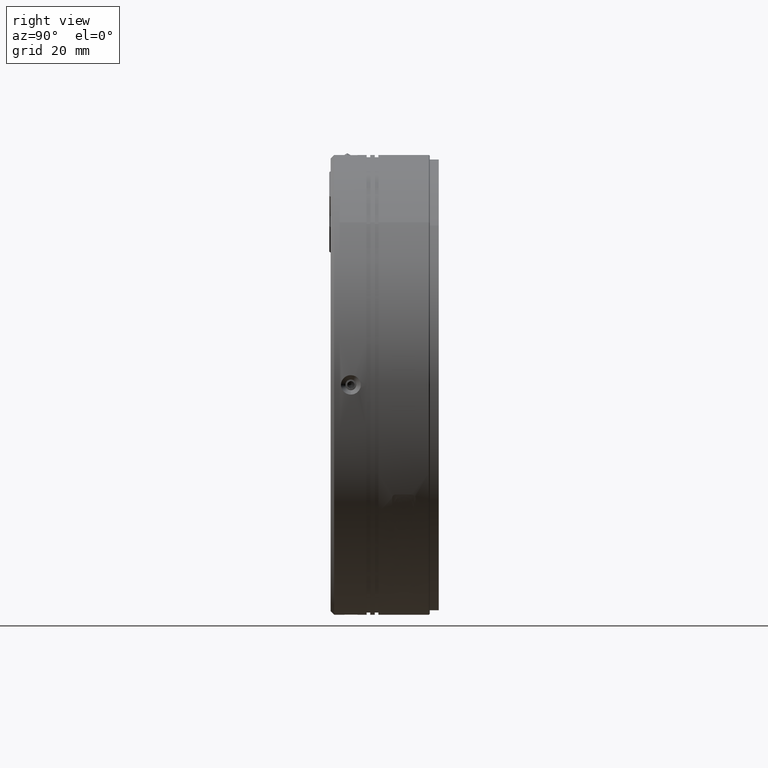
[diagram: clean part render]
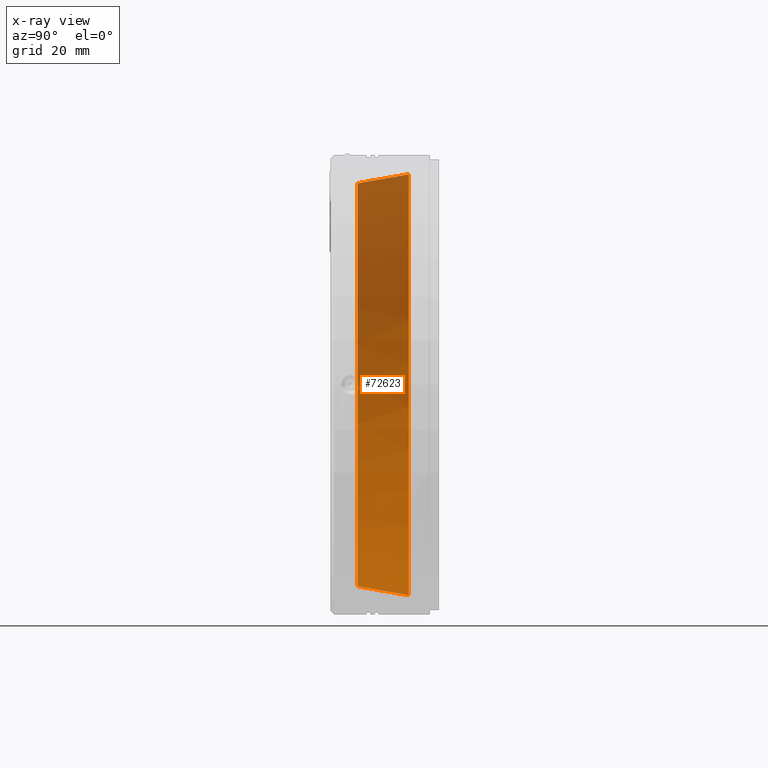
[diagram: x-ray — body ghosted, one internal face saturated and labeled with its STEP entity id]
A machine part, right view, then the same camera in x-ray: the body is ghosted and one INTERNAL B-rep face — a face not visible from any outside direction — is saturated and labeled: STEP entity #72623.
In plain terms, the highlighted conical surface has half-angle 10 deg.
Its self-contained STEP definition (entity closure, byte-faithful):
#1984 = EDGE_CURVE ( 'NONE', #14570, #21691, #44793, .T. ) ;
#2862 = ORIENTED_EDGE ( 'NONE', *, *, #79406, .F. ) ;
#3005 = CIRCLE ( 'NONE', #67231, 46.69696155060245200 ) ;
#4964 = ORIENTED_EDGE ( 'NONE', *, *, #39993, .T. ) ;
#8898 = EDGE_LOOP ( 'NONE', ( #2862, #52826, #61858, #4964, #13290 ) ) ;
#9566 = DIRECTION ( 'NONE',  ( -0.0000000000000000000, 1.000000000000000000, 0.0000000000000000000 ) ) ;
#13290 = ORIENTED_EDGE ( 'NONE', *, *, #28155, .T. ) ;
#14570 = VERTEX_POINT ( 'NONE', #55169 ) ;
#14766 = AXIS2_PLACEMENT_3D ( 'NONE', #37586, #88329, #44841 ) ;
#14876 = CARTESIAN_POINT ( 'NONE',  ( -44.69696155060206900, 7.407147174518520700, 8.239612835763062900E-015 ) ) ;
#18722 = VECTOR ( 'NONE', #62594, 1000.000000000000000 ) ;
#18830 = CARTESIAN_POINT ( 'NONE',  ( 3.374341791305877200E-013, 18.74971081375443300, 46.69696155060237400 ) ) ;
#21632 = AXIS2_PLACEMENT_3D ( 'NONE', #60386, #9566, #53412 ) ;
#21691 = VERTEX_POINT ( 'NONE', #14876 ) ;
#22857 = DIRECTION ( 'NONE',  ( 0.0000000000000000000, 0.9848077530122093500, 0.1736481776669232000 ) ) ;
#25554 = FACE_OUTER_BOUND ( 'NONE', #8898, .T. ) ;
#27791 = VECTOR ( 'NONE', #22857, 1000.000000000000000 ) ;
#28155 = EDGE_CURVE ( 'NONE', #33078, #84491, #3005, .T. ) ;
#33078 = VERTEX_POINT ( 'NONE', #18830 ) ;
#33102 = DIRECTION ( 'NONE',  ( 0.0000000000000000000, -1.000000000000000000, 0.0000000000000000000 ) ) ;
#37586 = CARTESIAN_POINT ( 'NONE',  ( 3.317154506813025100E-013, 7.407147174518520700, 2.765813746307307400E-015 ) ) ;
#39993 = EDGE_CURVE ( 'NONE', #76290, #33078, #68683, .T. ) ;
#42070 = EDGE_CURVE ( 'NONE', #21691, #76290, #43097, .T. ) ;
#43097 = CIRCLE ( 'NONE', #14766, 44.69696155060245200 ) ;
#44793 = CIRCLE ( 'NONE', #52127, 44.69696155060245200 ) ;
#44841 = DIRECTION ( 'NONE',  ( 0.0000000000000000000, 4.657292350432958600E-016, 1.000000000000000000 ) ) ;
#51742 = CARTESIAN_POINT ( 'NONE',  ( 3.317154506813025100E-013, 18.74971081375444700, 46.69696155060245200 ) ) ;
#52127 = AXIS2_PLACEMENT_3D ( 'NONE', #79461, #79147, #78528 ) ;
#52558 = CARTESIAN_POINT ( 'NONE',  ( 3.317154506813025100E-013, 7.407147174518520700, 44.69696155060245200 ) ) ;
#52826 = ORIENTED_EDGE ( 'NONE', *, *, #1984, .T. ) ;
#53412 = DIRECTION ( 'NONE',  ( 0.0000000000000000000, 0.0000000000000000000, 1.000000000000000000 ) ) ;
#55169 = CARTESIAN_POINT ( 'NONE',  ( 3.373117144506730100E-013, 7.407147174518520700, -44.69696155060245200 ) ) ;
#55246 = CARTESIAN_POINT ( 'NONE',  ( 3.374341791305877200E-013, 18.74971081375444700, -46.69696155060245200 ) ) ;
#58797 = CARTESIAN_POINT ( 'NONE',  ( 3.317154506813025100E-013, 18.74971081375443300, -46.69696155060237400 ) ) ;
#60386 = CARTESIAN_POINT ( 'NONE',  ( 3.317154506813025100E-013, 18.74971081375444700, 2.765813746307307400E-015 ) ) ;
#61858 = ORIENTED_EDGE ( 'NONE', *, *, #42070, .T. ) ;
#62594 = DIRECTION ( 'NONE',  ( 2.126576849575684100E-017, 0.9848077530122093500, -0.1736481776669232000 ) ) ;
#67231 = AXIS2_PLACEMENT_3D ( 'NONE', #76598, #33102, #83882 ) ;
#68683 = LINE ( 'NONE', #51742, #27791 ) ;
#72066 = CONICAL_SURFACE ( 'NONE', #21632, 46.69696155060245200, 0.1745329251994257000 ) ;
#72623 = ADVANCED_FACE ( 'NONE', ( #25554 ), #72066, .T. ) ;
#76290 = VERTEX_POINT ( 'NONE', #52558 ) ;
#76598 = CARTESIAN_POINT ( 'NONE',  ( 3.317154506813025100E-013, 18.74971081375443300, 2.765813746307307400E-015 ) ) ;
#78528 = DIRECTION ( 'NONE',  ( 0.0000000000000000000, 4.657292350432958600E-016, 1.000000000000000000 ) ) ;
#79147 = DIRECTION ( 'NONE',  ( -0.0000000000000000000, 1.000000000000000000, -0.0000000000000000000 ) ) ;
#79406 = EDGE_CURVE ( 'NONE', #14570, #84491, #93737, .T. ) ;
#79461 = CARTESIAN_POINT ( 'NONE',  ( 3.317154506813025100E-013, 7.407147174518520700, 2.765813746307307400E-015 ) ) ;
#83882 = DIRECTION ( 'NONE',  ( 0.0000000000000000000, 2.971882398124769400E-016, 1.000000000000000000 ) ) ;
#84491 = VERTEX_POINT ( 'NONE', #58797 ) ;
#88329 = DIRECTION ( 'NONE',  ( -0.0000000000000000000, 1.000000000000000000, -0.0000000000000000000 ) ) ;
#93737 = LINE ( 'NONE', #55246, #18722 ) ;